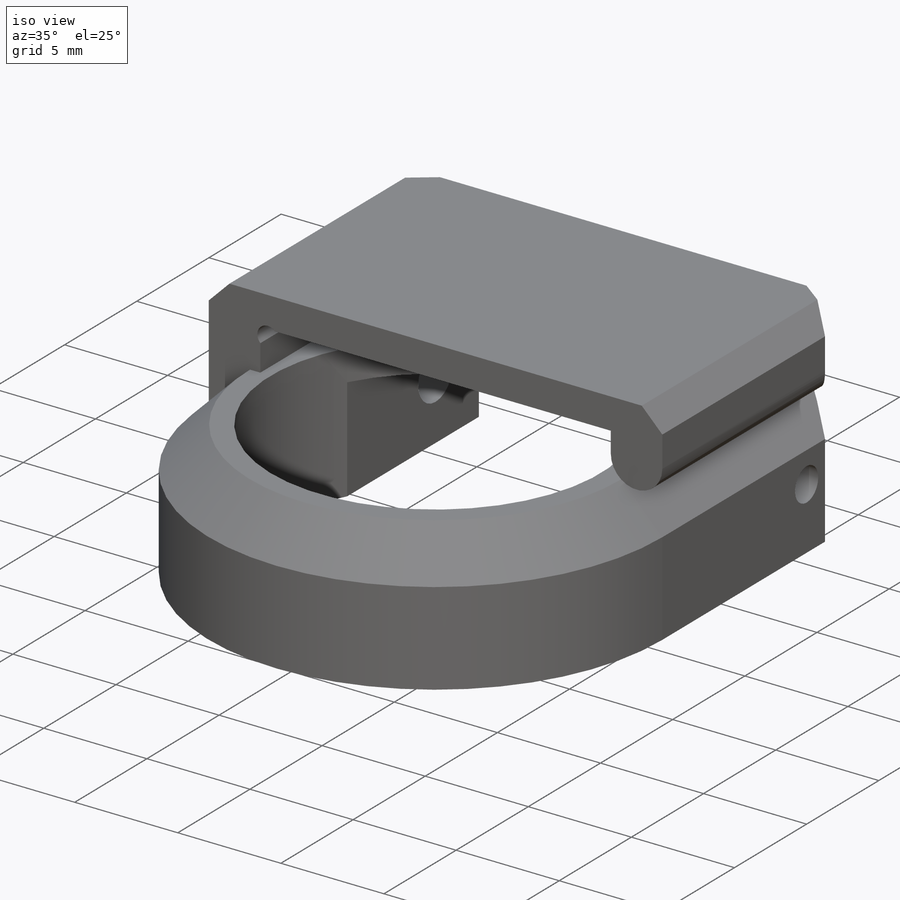
[diagram: iso view]
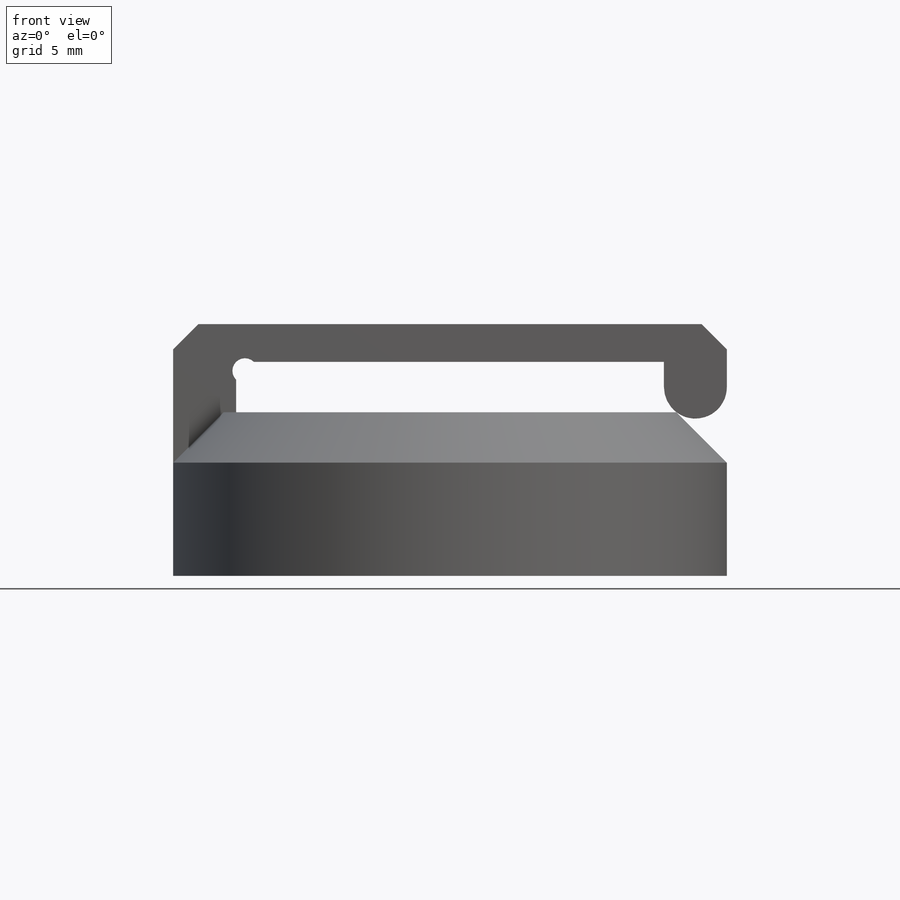
[diagram: front view]
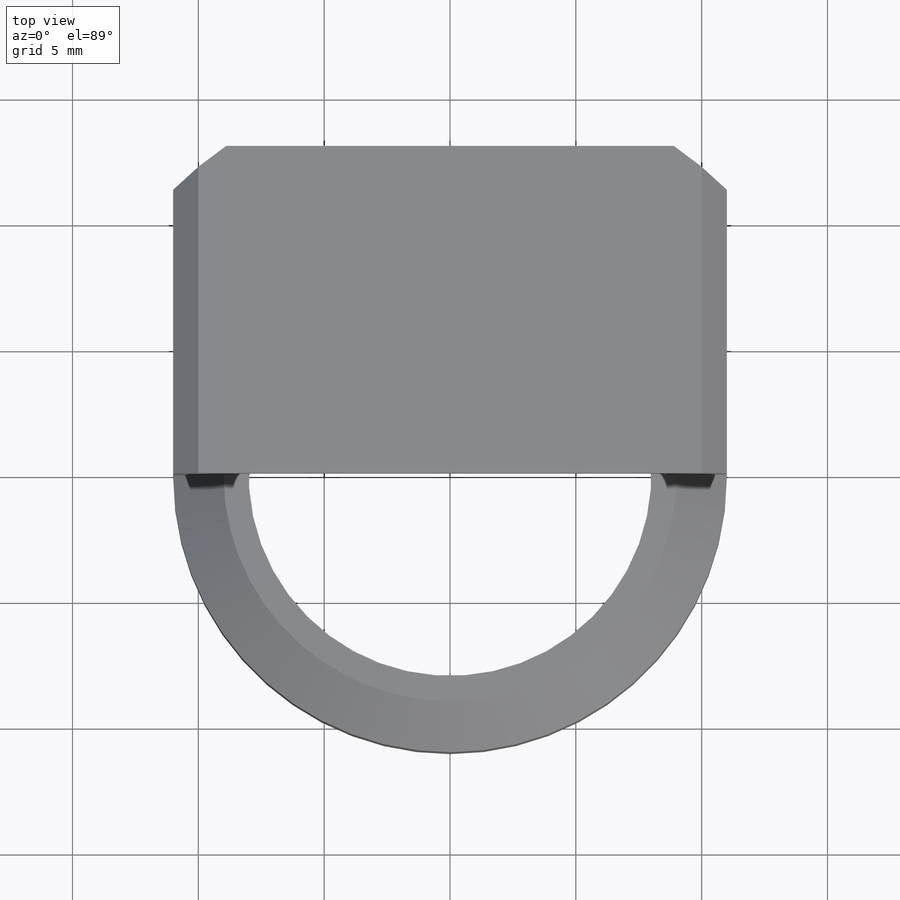
[diagram: top view]
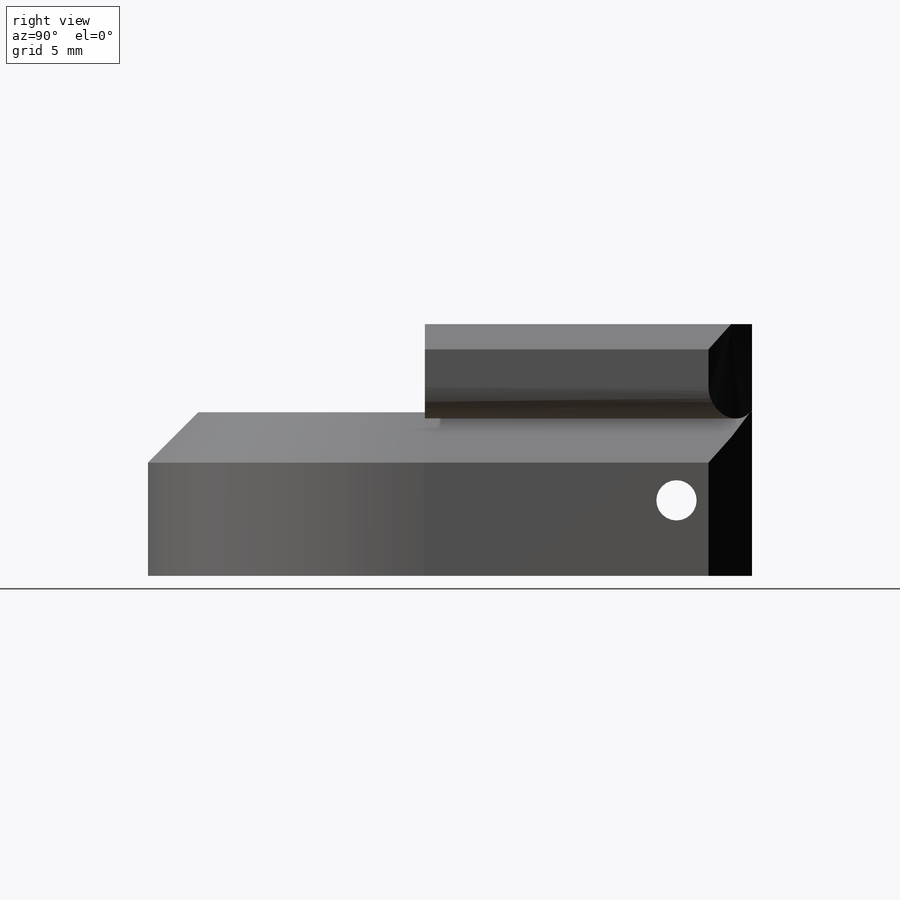
[diagram: right view]
SOLIDWORKS PART (.sldprt)
format: sldprt  version: not decoded by parser v0  size: 430,080 bytes
history: native  units: mm
features: sketch x16, extrude x6, cut_extrude x4, chamfer x3, hole x2, material x1, revolve x1, cut_revolve x1, mirror x1 (+12 scaffold rows collapsed)
feature tree (47):
  scaffold x12  (default folders/planes/origin — collapsed)
  material  "ABS"
  sketch  "Sketch1"  dims[D1=22.0mm D2=6.5mm]
  revolve  "Revolve1"  Angle=360deg
  sketch  "Sketch2"  dims[D1=16.0mm D2=6.8mm]
  cut_revolve  "Cut-Revolve1"  Angle=360deg
  sketch  "Sketch3"  dims[D1=5.0mm D2=14.0mm]
  cut_extrude  "Cut-Extrude1"  Depth=15mm
  sketch  "Sketch4"  dims[D1=6.5mm]
  cut_extrude  "Cut-Extrude2"  Depth=0.5mm
  sketch  "Sketch5"  dims[D1=13.0mm]
  extrude  "Boss-Extrude1"  [1 undecoded]
  sketch  "Sketch6"
  extrude  "Boss-Extrude2"  [1 undecoded]
  mirror  "Mirror1"
  hole  "CSK for M2 Countersunk Flat Head Screw1"  Diameter=2.4mm Depth=5mm
  sketch  "Sketch8"  dims[D1=3.0mm D2=3.0mm]
  sketch  "Sketch9"  dims[hole-wizard template sketch: 39 standard entries collapsed; hole parameters kept: c13.Hole Dia.=2.4mm c13.Hole Depth=5.0mm c13.Near C'Sink Dia.=4.4mm c13.D4=~33.297463mm c13.Near C'Sink Angle=90.0deg c14.D5=~14.816244mm c14.Drill Angle=118.0deg]
  hole  "Tap Drill for M2 Tap1"  Diameter=1.6mm Depth=22mm
  sketch  "Sketch11"
  sketch  "Sketch10"  dims[hole-wizard template sketch: 60 standard entries collapsed; hole parameters kept: c18.Thru Hole Depth=22.0mm]
  sketch  "Sketch12"  dims[D1=2.5mm]
  extrude  "Boss-Extrude3"  Depth=2mm
  sketch  "Sketch14"
  extrude  "Boss-Extrude4"  Depth=1.5mm
  sketch  "Sketch16"  dims[D1=2.5mm D2=1.0mm]
  extrude  "Boss-Extrude5"  [1 undecoded]
  sketch  "Sketch17"  dims[D1=1.0mm]
  sketch  "Sketch19"
  extrude  "Boss-Extrude6"  [1 undecoded]
  cut_extrude  "Cut-Extrude3"  [1 undecoded]
  chamfer  "Chamfer1"  Distance=2mm Angle=45deg
  chamfer  "Chamfer2"  Distance=1mm Angle=45deg
  chamfer  "Chamfer3"  Distance=1mm Angle=45deg
  sketch  "Sketch20"  dims[D1=31.5mm]
  cut_extrude  "Cut-Extrude5"  Depth=17mm
decode coverage: 24 of 34 modeling features carry decoded parameters
note: ~ marks probable driven/reference dimensions
note: 5 parameter values undecoded
summary: no parameter record found for 5 features
note: suppression state not decoded; provenance and decode notes live in map.json
